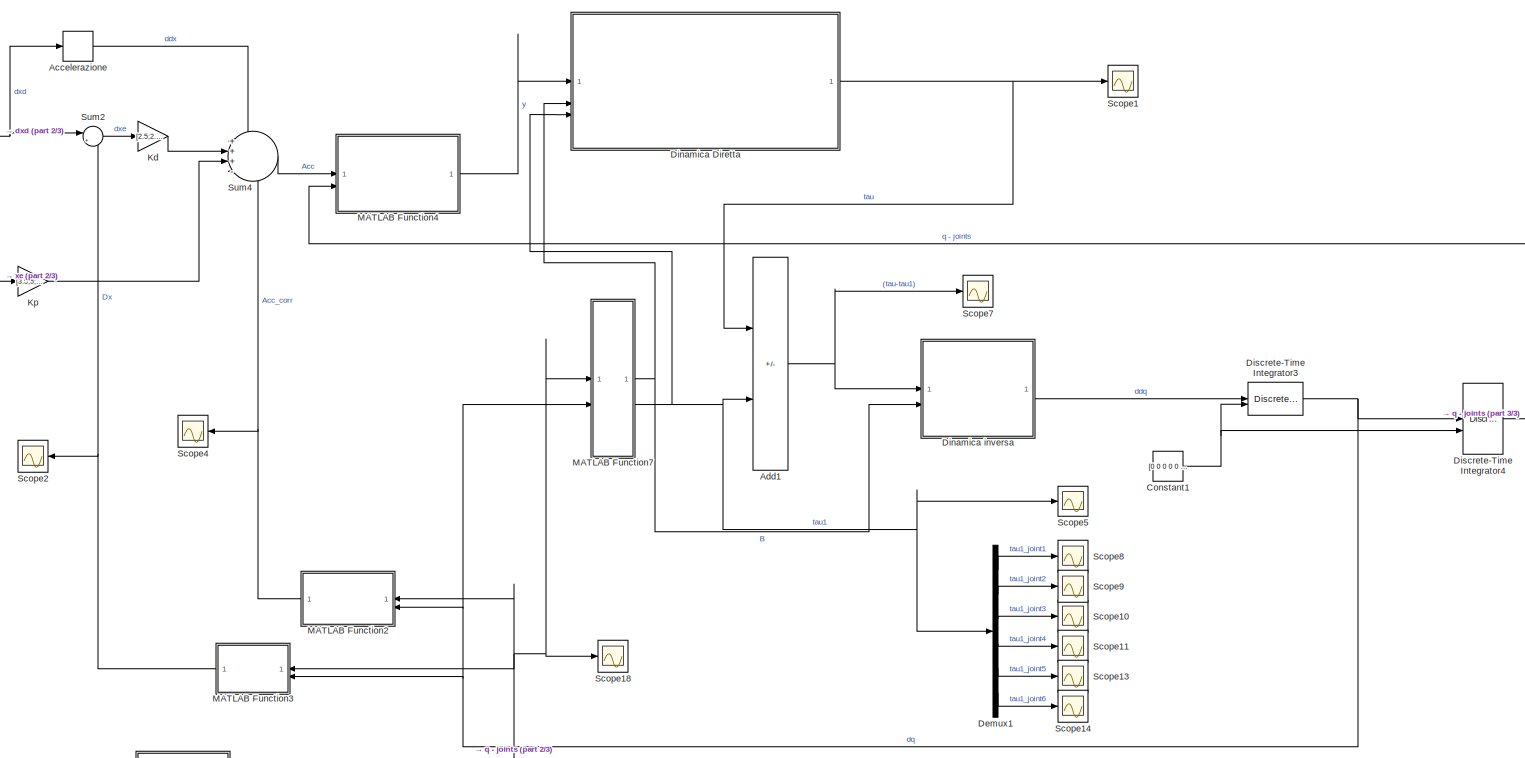
[diagram: root canvas - part 1/3, central region]
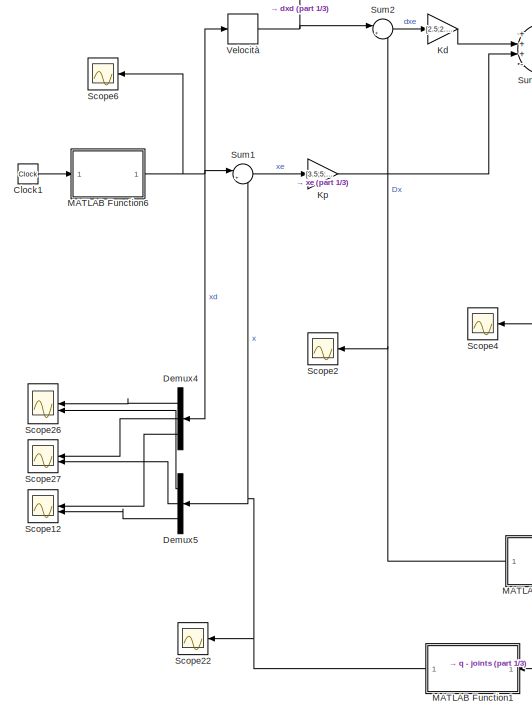
[diagram: root canvas - part 2/3, middle left region]
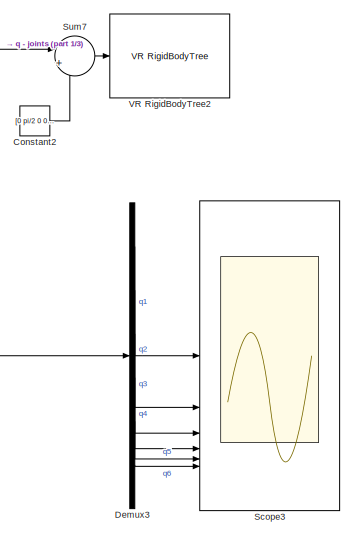
[diagram: root canvas - part 3/3, bottom right region]
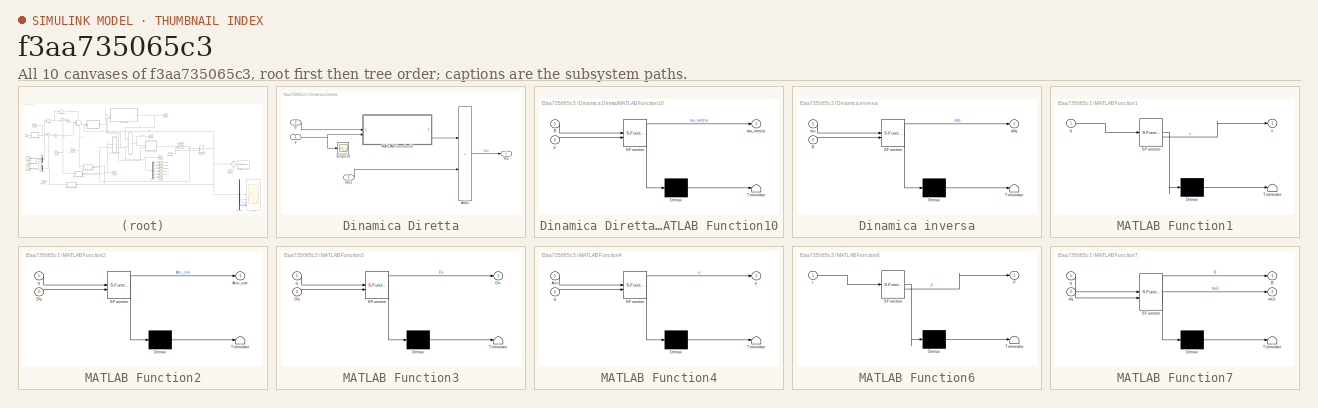
[diagram: thumbnail index - all 10 canvases of the model, root first then tree order]
MODEL slx_f3aa735065c3
KIND model
CONFIG AbsTol = auto
CONFIG EnableMultiTasking = off
CONFIG FixedStep = 0.05
CONFIG MaxStep = auto
CONFIG MinStep = auto
CONFIG RelTol = 1e-3
CONFIG SampleTimeConstraint = Unconstrained
CONFIG SolverName = FixedStepAuto
CONFIG StartTime = 0.0
CONFIG StopTime = 16.0
BLOCK [Derivative] Accelerazione
BLOCK [Sum] Add1
  IconShape = rectangular
  Inputs = +-
BLOCK [Clock] Clock1
  Decimation = 1
BLOCK [Constant] Constant1
  Value = [0 0 0 0 0 0]'
BLOCK [Constant] Constant2
  Value = [0 pi/2 0 0 0 0]'
BLOCK [Demux] Demux1
  Outputs = 6
BLOCK [Demux] Demux3
  Outputs = 6
BLOCK [Demux] Demux4
  Outputs = 3
BLOCK [Demux] Demux5
  Outputs = 3
BLOCK [SubSystem] Dinamica Diretta
BLOCK [Sum] Dinamica Diretta/Add1
  IconShape = rectangular
BLOCK [Inport] Dinamica Diretta/B
  Port = 2
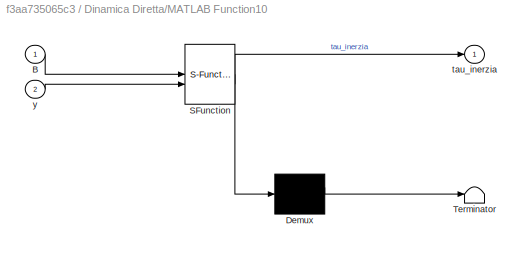
BLOCK [SubSystem] Dinamica Diretta/MATLAB Function10
  ErrorFcn = Stateflow.Translate.translate
  PermitHierarchicalResolution = ExplicitOnly
  SFBlockType = MATLAB Function
  TreatAsAtomicUnit = on
BLOCK [Demux] Dinamica Diretta/MATLAB Function10/ Demux 
  Outputs = 1
BLOCK [S-Function] Dinamica Diretta/MATLAB Function10/ SFunction 
  EnableBusSupport = on
  FunctionName = sf_sfun
  PortCounts = [2 2]
  SFcnIsStateOwnerBlock = off
  SFunctionDeploymentMode = off
  Tag = Stateflow S-Function 1
BLOCK [Terminator] Dinamica Diretta/MATLAB Function10/ Terminator 
BLOCK [Inport] Dinamica Diretta/MATLAB Function10/B
BLOCK [Outport] Dinamica Diretta/MATLAB Function10/tau_inerzia
BLOCK [Inport] Dinamica Diretta/MATLAB Function10/y
  Port = 2
BLOCK [Scope] Dinamica Diretta/Scope10
  Floating = off
  NumInputPorts = 1
  ScopeSpecificationString = Simulink.scopes.TimeScopeBlockCfg('CurrentConfiguration', extmgr.ConfigurationSet(extmgr.Configuration('Core','General UI',true),extmgr.Configuration('Core','Source UI',true),extmgr.Configuration('Sources','WiredSimulink',true,'DataLoggingVariableName','ScopeData8'),extmgr.Configuration('Visuals','Time Domain',true),extmgr.Configuration('Tools','Plot Navigation',true),extmgr.Configuration('Tools',...<+40ch>
BLOCK [Outport] Dinamica Diretta/tau
BLOCK [Inport] Dinamica Diretta/tau1
  NameLocation = left
  Port = 3
BLOCK [Inport] Dinamica Diretta/y
BLOCK [SubSystem] Dinamica inversa
  ErrorFcn = Stateflow.Translate.translate
  PermitHierarchicalResolution = ExplicitOnly
  SFBlockType = MATLAB Function
  TreatAsAtomicUnit = on
BLOCK [Demux] Dinamica inversa/ Demux 
  Outputs = 1
BLOCK [S-Function] Dinamica inversa/ SFunction 
  EnableBusSupport = on
  FunctionName = sf_sfun
  PortCounts = [2 2]
  SFcnIsStateOwnerBlock = off
  SFunctionDeploymentMode = off
  Tag = Stateflow S-Function 7
BLOCK [Terminator] Dinamica inversa/ Terminator 
BLOCK [Inport] Dinamica inversa/B
  Port = 2
BLOCK [Outport] Dinamica inversa/ddq
BLOCK [Inport] Dinamica inversa/tau
BLOCK [DiscreteIntegrator] Discrete-Time Integrator3
  ICPrevOutput = DiscIntNeverNeededParam
  ICPrevScaledInput = DiscIntNeverNeededParam
  InitialConditionSetting = Auto
  InitialConditionSource = external
  SampleTime = -1
BLOCK [DiscreteIntegrator] Discrete-Time Integrator4
  ICPrevOutput = DiscIntNeverNeededParam
  ICPrevScaledInput = DiscIntNeverNeededParam
  InitialConditionSetting = Auto
  InitialConditionSource = external
  SampleTime = -1
BLOCK [Gain] Kd
  Gain = [2.5;2.5; 2.5]
BLOCK [Gain] Kp
  Gain = [3.5;5;3.5]
BLOCK [SubSystem] MATLAB Function1
  ErrorFcn = Stateflow.Translate.translate
  PermitHierarchicalResolution = ExplicitOnly
  SFBlockType = MATLAB Function
  TreatAsAtomicUnit = on
BLOCK [Demux] MATLAB Function1/ Demux 
  Outputs = 1
BLOCK [S-Function] MATLAB Function1/ SFunction 
  EnableBusSupport = on
  FunctionName = sf_sfun
  PortCounts = [1 2]
  SFcnIsStateOwnerBlock = off
  SFunctionDeploymentMode = off
  Tag = Stateflow S-Function 3
BLOCK [Terminator] MATLAB Function1/ Terminator 
BLOCK [Inport] MATLAB Function1/q
BLOCK [Outport] MATLAB Function1/x
BLOCK [SubSystem] MATLAB Function2
  ErrorFcn = Stateflow.Translate.translate
  PermitHierarchicalResolution = ExplicitOnly
  SFBlockType = MATLAB Function
  TreatAsAtomicUnit = on
BLOCK [Demux] MATLAB Function2/ Demux 
  Outputs = 1
BLOCK [S-Function] MATLAB Function2/ SFunction 
  EnableBusSupport = on
  FunctionName = sf_sfun
  PortCounts = [2 2]
  SFcnIsStateOwnerBlock = off
  SFunctionDeploymentMode = off
  Tag = Stateflow S-Function 4
BLOCK [Terminator] MATLAB Function2/ Terminator 
BLOCK [Outport] MATLAB Function2/Acc_corr
BLOCK [Inport] MATLAB Function2/Dq
  Port = 2
BLOCK [Inport] MATLAB Function2/q
BLOCK [SubSystem] MATLAB Function3
  ErrorFcn = Stateflow.Translate.translate
  PermitHierarchicalResolution = ExplicitOnly
  SFBlockType = MATLAB Function
  TreatAsAtomicUnit = on
BLOCK [Demux] MATLAB Function3/ Demux 
  Outputs = 1
BLOCK [S-Function] MATLAB Function3/ SFunction 
  EnableBusSupport = on
  FunctionName = sf_sfun
  PortCounts = [2 2]
  SFcnIsStateOwnerBlock = off
  SFunctionDeploymentMode = off
  Tag = Stateflow S-Function 5
BLOCK [Terminator] MATLAB Function3/ Terminator 
BLOCK [Inport] MATLAB Function3/Dq
  Port = 2
BLOCK [Outport] MATLAB Function3/Dx
BLOCK [Inport] MATLAB Function3/q
BLOCK [SubSystem] MATLAB Function4
  ErrorFcn = Stateflow.Translate.translate
  PermitHierarchicalResolution = ExplicitOnly
  SFBlockType = MATLAB Function
  TreatAsAtomicUnit = on
BLOCK [Demux] MATLAB Function4/ Demux 
  Outputs = 1
BLOCK [S-Function] MATLAB Function4/ SFunction 
  EnableBusSupport = on
  FunctionName = sf_sfun
  PortCounts = [2 2]
  SFcnIsStateOwnerBlock = off
  SFunctionDeploymentMode = off
  Tag = Stateflow S-Function 6
BLOCK [Terminator] MATLAB Function4/ Terminator 
BLOCK [Inport] MATLAB Function4/Acc
BLOCK [Inport] MATLAB Function4/q
  Port = 2
BLOCK [Outport] MATLAB Function4/y
BLOCK [SubSystem] MATLAB Function6
  ErrorFcn = Stateflow.Translate.translate
  PermitHierarchicalResolution = ExplicitOnly
  SFBlockType = MATLAB Function
  TreatAsAtomicUnit = on
BLOCK [Demux] MATLAB Function6/ Demux 
  Outputs = 1
BLOCK [S-Function] MATLAB Function6/ SFunction 
  EnableBusSupport = on
  FunctionName = sf_sfun
  PortCounts = [1 2]
  SFcnIsStateOwnerBlock = off
  SFunctionDeploymentMode = off
  Tag = Stateflow S-Function 8
BLOCK [Terminator] MATLAB Function6/ Terminator 
BLOCK [Outport] MATLAB Function6/P
BLOCK [Inport] MATLAB Function6/t
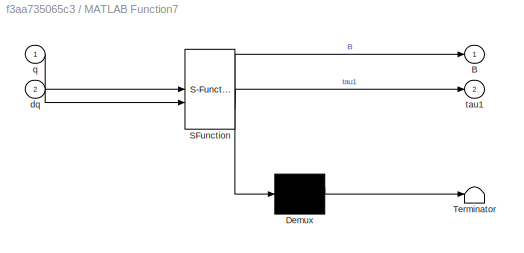
BLOCK [SubSystem] MATLAB Function7
  ErrorFcn = Stateflow.Translate.translate
  PermitHierarchicalResolution = ExplicitOnly
  SFBlockType = MATLAB Function
  TreatAsAtomicUnit = on
BLOCK [Demux] MATLAB Function7/ Demux 
  Outputs = 1
BLOCK [S-Function] MATLAB Function7/ SFunction 
  EnableBusSupport = on
  FunctionName = sf_sfun
  Parameters = DH,rb
  PortCounts = [2 3]
  SFcnIsStateOwnerBlock = off
  SFunctionDeploymentMode = off
  Tag = Stateflow S-Function 14
BLOCK [Terminator] MATLAB Function7/ Terminator 
BLOCK [Outport] MATLAB Function7/B
BLOCK [Inport] MATLAB Function7/dq
  Port = 2
BLOCK [Inport] MATLAB Function7/q
BLOCK [Outport] MATLAB Function7/tau1
  Port = 2
BLOCK [Scope] Scope1
  Floating = off
  NumInputPorts = 1
  ScopeSpecificationString = Simulink.scopes.TimeScopeBlockCfg('CurrentConfiguration', extmgr.ConfigurationSet(extmgr.Configuration('Core','General UI',true,'FigureColor',[0.313725490196078 0.313725490196078 0.313725490196078]),extmgr.Configuration('Core','Source UI',true),extmgr.Configuration('Sources','WiredSimulink',true,'DataLoggingVariableName','ScopeData1'),extmgr.Configuration('Visuals','Time Domain',true,'SerializedDi...<+1674ch>
BLOCK [Scope] Scope10
  Floating = off
  NumInputPorts = 1
  ScopeSpecificationString = Simulink.scopes.TimeScopeBlockCfg('CurrentConfiguration', extmgr.ConfigurationSet(extmgr.Configuration('Core','General UI',true,'FigureColor',[0.313725490196078 0.313725490196078 0.313725490196078]),extmgr.Configuration('Core','Source UI',true),extmgr.Configuration('Sources','WiredSimulink',true,'DataLoggingVariableName','ScopeData7'),extmgr.Configuration('Visuals','Time Domain',true,'SerializedDi...<+1643ch>
BLOCK [Scope] Scope11
  Floating = off
  NumInputPorts = 1
  ScopeSpecificationString = Simulink.scopes.TimeScopeBlockCfg('CurrentConfiguration', extmgr.ConfigurationSet(extmgr.Configuration('Core','General UI',true,'FigureColor',[0.313725490196078 0.313725490196078 0.313725490196078]),extmgr.Configuration('Core','Source UI',true),extmgr.Configuration('Sources','WiredSimulink',true,'DataLoggingVariableName','ScopeData8'),extmgr.Configuration('Visuals','Time Domain',true,'SerializedDi...<+1639ch>
BLOCK [Scope] Scope12
  Floating = off
  NumInputPorts = 2
  ScopeSpecificationString = Simulink.scopes.TimeScopeBlockCfg('CurrentConfiguration', extmgr.ConfigurationSet(extmgr.Configuration('Core','General UI',true),extmgr.Configuration('Core','Source UI',true),extmgr.Configuration('Sources','WiredSimulink',true,'DataLoggingVariableName','ScopeData1'),extmgr.Configuration('Visuals','Time Domain',true,'SerializedDisplays',{struct('MinYLimReal','1.00887','MaxYLimReal','1.01021','YLabe...<+1542ch>
BLOCK [Scope] Scope13
  Floating = off
  NumInputPorts = 1
  ScopeSpecificationString = Simulink.scopes.TimeScopeBlockCfg('CurrentConfiguration', extmgr.ConfigurationSet(extmgr.Configuration('Core','General UI',true,'FigureColor',[0.313725490196078 0.313725490196078 0.313725490196078]),extmgr.Configuration('Core','Source UI',true),extmgr.Configuration('Sources','WiredSimulink',true,'DataLoggingVariableName','ScopeData9'),extmgr.Configuration('Visuals','Time Domain',true,'SerializedDi...<+1641ch>
BLOCK [Scope] Scope14
  Floating = off
  NumInputPorts = 1
  ScopeSpecificationString = Simulink.scopes.TimeScopeBlockCfg('CurrentConfiguration', extmgr.ConfigurationSet(extmgr.Configuration('Core','General UI',true,'FigureColor',[0.313725490196078 0.313725490196078 0.313725490196078]),extmgr.Configuration('Core','Source UI',true),extmgr.Configuration('Sources','WiredSimulink',true,'DataLoggingVariableName','ScopeData10'),extmgr.Configuration('Visuals','Time Domain',true,'SerializedD...<+1641ch>
BLOCK [Scope] Scope18
  Floating = off
  NumInputPorts = 1
  ScopeSpecificationString = Simulink.scopes.TimeScopeBlockCfg('CurrentConfiguration', extmgr.ConfigurationSet(extmgr.Configuration('Core','General UI',true),extmgr.Configuration('Core','Source UI',true),extmgr.Configuration('Sources','WiredSimulink',true,'DataLoggingVariableName','ScopeData2'),extmgr.Configuration('Visuals','Time Domain',true,'SerializedDisplays',{struct('MinYLimReal','-4.20922','MaxYLimReal','6.58123','YLab...<+1567ch>
BLOCK [Scope] Scope2
  Floating = off
  NumInputPorts = 1
  ScopeSpecificationString = Simulink.scopes.TimeScopeBlockCfg('CurrentConfiguration', extmgr.ConfigurationSet(extmgr.Configuration('Core','General UI',true),extmgr.Configuration('Core','Source UI',true),extmgr.Configuration('Sources','WiredSimulink',true,'DataLoggingVariableName','ScopeData1'),extmgr.Configuration('Visuals','Time Domain',true,'SerializedDisplays',{struct('MinYLimReal','-0.12626','MaxYLimReal','1.13633','YLab...<+1582ch>
BLOCK [Scope] Scope22
  Floating = off
  NumInputPorts = 1
  ScopeSpecificationString = Simulink.scopes.TimeScopeBlockCfg('CurrentConfiguration', extmgr.ConfigurationSet(extmgr.Configuration('Core','General UI',true),extmgr.Configuration('Core','Source UI',true),extmgr.Configuration('Sources','WiredSimulink',true,'DataLoggingVariableName','ScopeData5'),extmgr.Configuration('Visuals','Time Domain',true,'SerializedDisplays',{struct('MinYLimReal','-0.12626','MaxYLimReal','1.13633','YLab...<+1548ch>
BLOCK [Scope] Scope26
  Floating = off
  NumInputPorts = 2
  ScopeSpecificationString = Simulink.scopes.TimeScopeBlockCfg('CurrentConfiguration', extmgr.ConfigurationSet(extmgr.Configuration('Core','General UI',true),extmgr.Configuration('Core','Source UI',true),extmgr.Configuration('Sources','WiredSimulink',true,'DataLoggingVariableName','ScopeData9'),extmgr.Configuration('Visuals','Time Domain',true,'SerializedDisplays',{struct('MinYLimReal','-0.61079','MaxYLimReal','0.655','YLabel...<+1536ch>
BLOCK [Scope] Scope27
  Floating = off
  NumInputPorts = 2
  ScopeSpecificationString = Simulink.scopes.TimeScopeBlockCfg('CurrentConfiguration', extmgr.ConfigurationSet(extmgr.Configuration('Core','General UI',true),extmgr.Configuration('Core','Source UI',true),extmgr.Configuration('Sources','WiredSimulink',true,'DataLoggingVariableName','ScopeData10'),extmgr.Configuration('Visuals','Time Domain',true,'SerializedDisplays',{struct('MinYLimReal','-0.4175','MaxYLimReal','0.00000','YLab...<+1541ch>
BLOCK [Scope] Scope3
  Floating = off
  NumInputPorts = 6
  ScopeSpecificationString = Simulink.scopes.TimeScopeBlockCfg('CurrentConfiguration', extmgr.ConfigurationSet(extmgr.Configuration('Core','General UI',true),extmgr.Configuration('Core','Source UI',true),extmgr.Configuration('Sources','WiredSimulink',true,'DataLoggingVariableName','ScopeData13'),extmgr.Configuration('Visuals','Time Domain',true,'SerializedDisplays',{struct('MinYLimReal','-0.01423','MaxYLimReal','0.01547','YLa...<+1668ch>
BLOCK [Scope] Scope4
  Floating = off
  NumInputPorts = 1
  ScopeSpecificationString = Simulink.scopes.TimeScopeBlockCfg('CurrentConfiguration', extmgr.ConfigurationSet(extmgr.Configuration('Core','General UI',true),extmgr.Configuration('Core','Source UI',true),extmgr.Configuration('Sources','WiredSimulink',true,'DataLoggingVariableName','ScopeData2'),extmgr.Configuration('Visuals','Time Domain',true,'SerializedDisplays',{struct('MinYLimReal','-0.12626','MaxYLimReal','1.13633','YLab...<+1582ch>
BLOCK [Scope] Scope5
  Floating = off
  NumInputPorts = 1
  ScopeSpecificationString = Simulink.scopes.TimeScopeBlockCfg('CurrentConfiguration', extmgr.ConfigurationSet(extmgr.Configuration('Core','General UI',true,'FigureColor',[0.313725490196078 0.313725490196078 0.313725490196078]),extmgr.Configuration('Core','Source UI',true),extmgr.Configuration('Sources','WiredSimulink',true,'DataLoggingVariableName','ScopeData2'),extmgr.Configuration('Visuals','Time Domain',true,'SerializedDi...<+1814ch>
BLOCK [Scope] Scope6
  Floating = off
  NumInputPorts = 1
  ScopeSpecificationString = Simulink.scopes.TimeScopeBlockCfg('CurrentConfiguration', extmgr.ConfigurationSet(extmgr.Configuration('Core','General UI',true),extmgr.Configuration('Core','Source UI',true),extmgr.Configuration('Sources','WiredSimulink',true,'DataLoggingVariableName','ScopeData3'),extmgr.Configuration('Visuals','Time Domain',true,'SerializedDisplays',{struct('MinYLimReal','-0.12626','MaxYLimReal','1.13633','YLab...<+1549ch>
BLOCK [Scope] Scope7
  Floating = off
  NumInputPorts = 1
  ScopeSpecificationString = Simulink.scopes.TimeScopeBlockCfg('CurrentConfiguration', extmgr.ConfigurationSet(extmgr.Configuration('Core','General UI',true,'FigureColor',[0 0 0]),extmgr.Configuration('Core','Source UI',true),extmgr.Configuration('Sources','WiredSimulink',true,'DataLoggingVariableName','ScopeData4'),extmgr.Configuration('Visuals','Time Domain',true,'SerializedDisplays',{struct('MinYLimReal','-0.34744','MaxYLi...<+1642ch>
BLOCK [Scope] Scope8
  Floating = off
  NumInputPorts = 1
  ScopeSpecificationString = Simulink.scopes.TimeScopeBlockCfg('CurrentConfiguration', extmgr.ConfigurationSet(extmgr.Configuration('Core','General UI',true,'FigureColor',[0.313725490196078 0.313725490196078 0.313725490196078]),extmgr.Configuration('Core','Source UI',true),extmgr.Configuration('Sources','WiredSimulink',true,'DataLoggingVariableName','ScopeData5'),extmgr.Configuration('Visuals','Time Domain',true,'SerializedDi...<+1641ch>
BLOCK [Scope] Scope9
  Floating = off
  NumInputPorts = 1
  ScopeSpecificationString = Simulink.scopes.TimeScopeBlockCfg('CurrentConfiguration', extmgr.ConfigurationSet(extmgr.Configuration('Core','General UI',true,'FigureColor',[0.313725490196078 0.313725490196078 0.313725490196078]),extmgr.Configuration('Core','Source UI',true),extmgr.Configuration('Sources','WiredSimulink',true,'DataLoggingVariableName','ScopeData6'),extmgr.Configuration('Visuals','Time Domain',true,'SerializedDi...<+1642ch>
BLOCK [Sum] Sum1
  Inputs = |+-
BLOCK [Sum] Sum2
  Inputs = |+-
BLOCK [Sum] Sum4
  Inputs = +++-
BLOCK [Sum] Sum7
  Inputs = |++
BLOCK [Reference] VR RigidBodyTree2  REF=vrlib/VR RigidBodyTree
  SourceBlock = vrlib/VR RigidBodyTree
  SourceType = VR RigidBodyTree
BLOCK [Derivative] Velocità
LINE Accelerazione:1 -> Sum4:1
NET Add1:1 -> Dinamica inversa:1, Scope7:1
LINE Clock1:1 -> MATLAB Function6:1
NET Constant1:1 -> Discrete-Time Integrator3:2, Discrete-Time Integrator4:2
LINE Constant2:1 -> Sum7:2
LINE Demux1:1 -> Scope8:1
LINE Demux1:2 -> Scope9:1
LINE Demux1:3 -> Scope10:1
LINE Demux1:4 -> Scope11:1
LINE Demux1:5 -> Scope13:1
LINE Demux1:6 -> Scope14:1
LINE Demux3:1 -> Scope3:1
LINE Demux3:2 -> Scope3:2
LINE Demux3:3 -> Scope3:3
LINE Demux3:4 -> Scope3:4
LINE Demux3:5 -> Scope3:5
LINE Demux3:6 -> Scope3:6
LINE Demux4:1 -> Scope26:1
LINE Demux4:2 -> Scope27:1
LINE Demux4:3 -> Scope12:1
LINE Demux5:1 -> Scope26:2
LINE Demux5:2 -> Scope27:2
LINE Demux5:3 -> Scope12:2
LINE Dinamica Diretta/Add1:1 -> Dinamica Diretta/tau:1
LINE Dinamica Diretta/B:1 -> Dinamica Diretta/MATLAB Function10:1
LINE Dinamica Diretta/MATLAB Function10:1 -> Dinamica Diretta/Add1:1
LINE Dinamica Diretta/tau1:1 -> Dinamica Diretta/Add1:2
NET Dinamica Diretta/y:1 -> Dinamica Diretta/MATLAB Function10:2, Dinamica Diretta/Scope10:1
NET Dinamica Diretta:1 -> Add1:1, Scope1:1
LINE Dinamica inversa:1 -> Discrete-Time Integrator3:1
NET Discrete-Time Integrator3:1 -> Discrete-Time Integrator4:1, MATLAB Function2:2, MATLAB Function3:2, MATLAB Function7:2
NET Discrete-Time Integrator4:1 -> Demux3:1, MATLAB Function1:1, MATLAB Function2:1, MATLAB Function3:1, MATLAB Function4:2, MATLAB Function7:1, Scope18:1, Sum7:1
LINE Kd:1 -> Sum4:2
LINE Kp:1 -> Sum4:3
NET MATLAB Function1:1 -> Demux5:1, Scope22:1, Sum1:2
NET MATLAB Function2:1 -> Scope4:1, Sum4:4
NET MATLAB Function3:1 -> Scope2:1, Sum2:2
LINE MATLAB Function4:1 -> Dinamica Diretta:1
NET MATLAB Function6:1 -> Demux4:1, Scope6:1, Sum1:1, Velocità:1
NET MATLAB Function7:1 -> Dinamica Diretta:2, Dinamica inversa:2
NET MATLAB Function7:2 -> Add1:2, Demux1:1, Dinamica Diretta:3, Scope5:1
LINE Sum1:1 -> Kp:1
LINE Sum2:1 -> Kd:1
LINE Sum4:1 -> MATLAB Function4:1
LINE Sum7:1 -> VR RigidBodyTree2:1
NET Velocità:1 -> Accelerazione:1, Sum2:1
note: NET lines group one-source signal fan-out (src -> all destinations, sorted); 1:1 wires keep LINE
CHART Dinamica Diretta/MATLAB Function10 states=1 transitions=1
  STATE_LABEL 'eML_blk_kernel()'
  STATE_LABEL 'SCRIPT:\nfunction tau_inerzia = calcolaTauInerzia(B,y)\n    tau_inerzia = B*y;\nend '
CHART MATLAB Function1 states=1 transitions=1
  STATE_LABEL 'eML_blk_kernel()'
  STATE_LABEL 'SCRIPT:\nfunction x = directKinematics(q)\n\nth1 = q(1);\nth2 = q(2);\nth3 = q(3);\nth4 = q(4);\nth5 = q(5);\nth6 = q(6);\n\n% T06\n\nT = [\n[  sin(th6)*(cos(th4)*sin(th1) + sin(th4)*(cos(th1)*sin(th3)*sin(th2 + pi/2) - cos(th1)*cos(th3)*cos(th2 + pi/2))) + cos(th6)*(cos(th5)*(sin(th1)*sin(th4) - cos(th4)*(cos(th1)*sin(th3)*sin(th2 + pi/2) - cos(th1)*cos(th3)*cos(th2 + pi/2))) - sin(th5)*(cos(th1)*cos(th3)*sin...<+3608ch>'
CHART MATLAB Function2 states=1 transitions=1
  STATE_LABEL 'eML_blk_kernel()'
  STATE_LABEL 'SCRIPT:\nfunction Acc_corr = DJa(q,Dq)\n\nth1 = q(1);\nth2 = q(2);\nth3 = q(3);\nth4 = q(4);\nth5 = q(5);\nth6 = q(6);\n\n% Velocità di giunto \ndth1 = Dq(1);\ndth2 = Dq(2);\ndth3 = Dq(3);\ndth4 = Dq(4);\ndth5 = Dq(5);\ndth6 = Dq(6);\n\n\n% Per il calcolo del DJ viene utilizzato lo script\n% JacobianDerive_wrt_time.m \n% Viene utilizzato il DJ = DJp [3X1] di posizione\n\n\nDJ = [\n[(9*sin(th5)*(cos(th4)*(dth1*cos(th1)*sin...<+3608ch>'
CHART MATLAB Function3 states=1 transitions=1
  STATE_LABEL 'eML_blk_kernel()'
  STATE_LABEL 'SCRIPT:\nfunction Dx = Ja(q,Dq)\nth1 = q(1);\nth2 = q(2);\nth3 = q(3);\nth4 = q(4);\nth5 = q(5);\nth6 = q(6);\n\n% Jacobiano di posizione J = Jp \nJ = [\n[(9*sin(th5)*(cos(th1)*sin(th4) - cos(th4)*(cos(th3)*cos(th2 + pi/2)*sin(th1) - sin(th1)*sin(th3)*sin(th2 + pi/2))))/50 - (17*cos(th2 + pi/2)*sin(th1))/40 - sin(th1)/20 - (9*cos(th5)*(cos(th3)*sin(th1)*sin(th2 + pi/2) + cos(th2 + pi/2)*sin(th1)*sin(th3)))/5...<+3608ch>'
CHART MATLAB Function4 states=1 transitions=1
  STATE_LABEL 'eML_blk_kernel()'
  STATE_LABEL 'SCRIPT:\nfunction y = inverseKinematic(Acc,q)\n\nth1 = q(1);\nth2 = q(2);\nth3 = q(3);\nth4 = q(4);\nth5 = q(5);\nth6 = q(6);\n\n%Jacobiano valutato nel tempo sul vettore q  \nJ = [\n[(9*sin(th5)*(cos(th1)*sin(th4) - cos(th4)*(cos(th3)*cos(th2 + pi/2)*sin(th1) - sin(th1)*sin(th3)*sin(th2 + pi/2))))/50 - (17*cos(th2 + pi/2)*sin(th1))/40 - sin(th1)/20 - (9*cos(th5)*(cos(th3)*sin(th1)*sin(th2 + pi/2) + cos(th2 +...<+3608ch>'
CHART Dinamica inversa states=1 transitions=1
  STATE_LABEL 'eML_blk_kernel()'
  STATE_LABEL 'SCRIPT:\n% Dinamica inversa\nfunction ddq = IndirectDynamics(tau, B)\n    Binv = pinv(B); % Calcola la pseudo-inversa di B\n    ddq = Binv*tau; % Calcola le accelerazioni di giunto \nend'
CHART MATLAB Function6 states=1 transitions=1
  STATE_LABEL 'eML_blk_kernel()'
  STATE_LABEL "SCRIPT:\nfunction P = traj_planner(t)\n% Intervallo di tempo\nti = 0;\ntf = 16;\n% Traslazione temporale \nt = t - ti;\ntf = tf - ti;\n\n% Posizioni nello spazio cartesiano riferito al frame di base del robot\nPi = [0.65 0 1.009].';      % [3x1] (m) Posizione dell'end-effector iniziale  \nPf = [0.65 0 1.009].';     % [3x1] (m) Posizione dell'end-effector finale \n%Pf = [-0.374 -0.4 0.63].';  % [3x1] (m) Pf = ...<+566ch>"
CHART MATLAB Function7 states=1 transitions=1
  STATE_LABEL 'eML_blk_kernel()'
  STATE_LABEL "SCRIPT:\nfunction [B, tau1] = RNE(q,dq,rb, DH)\n\nn = length (q);    % Numero di giunti\nB = zeros (n,n);   % Inizializzazione della matrice delle masse\nI = eye (n);       % Inizializzazione della matrice Identità \ng = [0; 0; -9.81]; % Inizializzazione dell'array dell'accelerazioni [m/s^2]\n\nfor i=1:n\nB(:,i) = RNE_Calc(q,zeros(n,1), I(:,i), rb, DH,g);\n%B(:,i) = RNE_Calc(q,zeros(n,1), I(:,i), rb, DH); %...<+147ch>"
CHART  states=0 transitions=0
CHART  states=0 transitions=0
CHART  states=0 transitions=0
CHART  states=0 transitions=0
CHART  states=0 transitions=0
CHART  states=0 transitions=0
CHART  states=0 transitions=0
CHART  states=0 transitions=0
